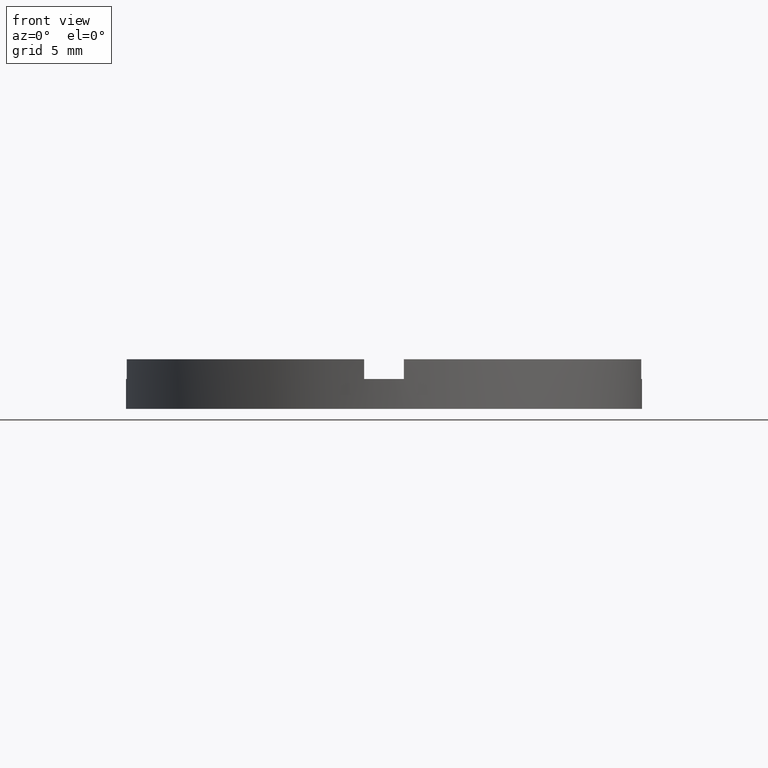
[diagram: clean part render]
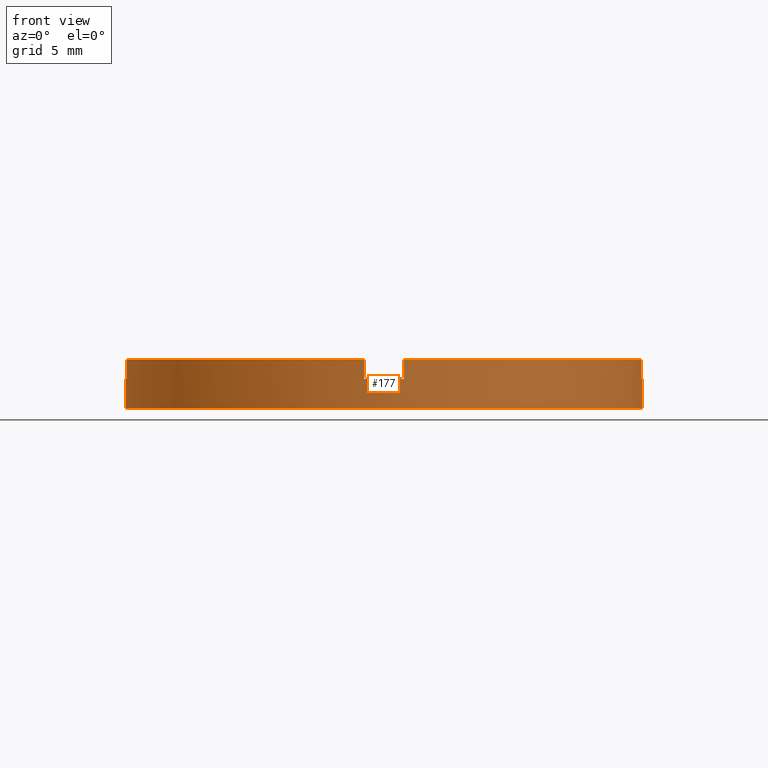
[diagram: same view with one face highlighted and labeled with its STEP entity id]
A machine part, front view. The second image highlights one B-rep face of the part: STEP entity #177.
In plain terms, the highlighted cylindrical surface (partial cylindrical patch) has radius 13 mm, axis along (-0, -0, -1).
Its self-contained STEP definition (entity closure, byte-faithful):
#6 = CIRCLE ( 'NONE', #585, 12.99999999999999822 ) ;
#9 = LINE ( 'NONE', #24, #232 ) ;
#19 = DIRECTION ( 'NONE',  ( -1.000000000000000000, 0.000000000000000000, 0.000000000000000000 ) ) ;
#20 = CARTESIAN_POINT ( 'NONE',  ( 0.000000000000000000, 0.000000000000000000, 2.500000000000000000 ) ) ;
#24 = CARTESIAN_POINT ( 'NONE',  ( 12.96148139681570655, -1.000000000000159872, 2.500000000000000000 ) ) ;
#33 = VECTOR ( 'NONE', #442, 1000.000000000000000 ) ;
#35 = LINE ( 'NONE', #359, #33 ) ;
#37 = CARTESIAN_POINT ( 'NONE',  ( -12.96148139681571543, -1.000000000000022427, 2.500000000000000000 ) ) ;
#39 = VECTOR ( 'NONE', #267, 1000.000000000000000 ) ;
#51 = EDGE_CURVE ( 'NONE', #616, #680, #471, .T. ) ;
#64 = DIRECTION ( 'NONE',  ( 1.000000000000000000, 0.000000000000000000, 0.000000000000000000 ) ) ;
#65 = CARTESIAN_POINT ( 'NONE',  ( 0.000000000000000000, 0.000000000000000000, 1.500000000000000000 ) ) ;
#68 = DIRECTION ( 'NONE',  ( 0.000000000000000000, 0.000000000000000000, 1.000000000000000000 ) ) ;
#97 = ORIENTED_EDGE ( 'NONE', *, *, #669, .T. ) ;
#104 = ORIENTED_EDGE ( 'NONE', *, *, #294, .F. ) ;
#115 = CARTESIAN_POINT ( 'NONE',  ( -12.96148139681571543, -1.000000000000022427, 1.500000000000000000 ) ) ;
#120 = AXIS2_PLACEMENT_3D ( 'NONE', #660, #739, #317 ) ;
#129 = EDGE_CURVE ( 'NONE', #406, #678, #215, .T. ) ;
#141 = VERTEX_POINT ( 'NONE', #279 ) ;
#147 = VERTEX_POINT ( 'NONE', #620 ) ;
#149 = CARTESIAN_POINT ( 'NONE',  ( 0.000000000000000000, 0.000000000000000000, 1.500000000000000000 ) ) ;
#159 = VERTEX_POINT ( 'NONE', #559 ) ;
#168 = ORIENTED_EDGE ( 'NONE', *, *, #332, .T. ) ;
#177 = ADVANCED_FACE ( 'NONE', ( #231 ), #754, .T. ) ;
#181 = VERTEX_POINT ( 'NONE', #189 ) ;
#189 = CARTESIAN_POINT ( 'NONE',  ( 12.96148139681570655, -1.000000000000159872, 2.500000000000000000 ) ) ;
#213 = CARTESIAN_POINT ( 'NONE',  ( 12.99999999999999822, 1.592040838891558898E-15, 2.500000000000000000 ) ) ;
#215 = LINE ( 'NONE', #572, #221 ) ;
#216 = DIRECTION ( 'NONE',  ( 0.000000000000000000, 0.000000000000000000, 1.000000000000000000 ) ) ;
#220 = DIRECTION ( 'NONE',  ( -0.000000000000000000, -0.000000000000000000, -1.000000000000000000 ) ) ;
#221 = VECTOR ( 'NONE', #510, 1000.000000000000000 ) ;
#231 = FACE_OUTER_BOUND ( 'NONE', #637, .T. ) ;
#232 = VECTOR ( 'NONE', #68, 1000.000000000000000 ) ;
#244 = AXIS2_PLACEMENT_3D ( 'NONE', #149, #216, #287 ) ;
#254 = DIRECTION ( 'NONE',  ( 0.000000000000000000, 0.000000000000000000, 1.000000000000000000 ) ) ;
#266 = LINE ( 'NONE', #454, #268 ) ;
#267 = DIRECTION ( 'NONE',  ( -0.000000000000000000, -0.000000000000000000, -1.000000000000000000 ) ) ;
#268 = VECTOR ( 'NONE', #696, 1000.000000000000000 ) ;
#279 = CARTESIAN_POINT ( 'NONE',  ( -1.000000000000163425, -12.96148139681570655, 1.500000000000000000 ) ) ;
#280 = CIRCLE ( 'NONE', #244, 12.99999999999999822 ) ;
#283 = CARTESIAN_POINT ( 'NONE',  ( -1.000000000000163425, -12.96148139681570655, 2.500000000000000000 ) ) ;
#285 = CIRCLE ( 'NONE', #120, 12.99999999999999822 ) ;
#287 = DIRECTION ( 'NONE',  ( 1.000000000000000000, 0.000000000000000000, 0.000000000000000000 ) ) ;
#294 = EDGE_CURVE ( 'NONE', #147, #445, #280, .T. ) ;
#302 = CIRCLE ( 'NONE', #422, 12.99999999999999822 ) ;
#313 = DIRECTION ( 'NONE',  ( 1.000000000000000000, 0.000000000000000000, 0.000000000000000000 ) ) ;
#317 = DIRECTION ( 'NONE',  ( 1.000000000000000000, 0.000000000000000000, 0.000000000000000000 ) ) ;
#323 = DIRECTION ( 'NONE',  ( 1.000000000000000000, 0.000000000000000000, 0.000000000000000000 ) ) ;
#329 = CARTESIAN_POINT ( 'NONE',  ( 0.9999999999998365752, -12.96148139681572964, 1.500000000000000000 ) ) ;
#332 = EDGE_CURVE ( 'NONE', #141, #396, #266, .T. ) ;
#337 = EDGE_CURVE ( 'NONE', #159, #678, #6, .T. ) ;
#338 = ORIENTED_EDGE ( 'NONE', *, *, #380, .T. ) ;
#339 = DIRECTION ( 'NONE',  ( 0.000000000000000000, 0.000000000000000000, 1.000000000000000000 ) ) ;
#350 = VERTEX_POINT ( 'NONE', #761 ) ;
#359 = CARTESIAN_POINT ( 'NONE',  ( -12.99999999999999822, 0.000000000000000000, 2.500000000000000000 ) ) ;
#365 = EDGE_CURVE ( 'NONE', #147, #181, #9, .T. ) ;
#380 = EDGE_CURVE ( 'NONE', #350, #606, #475, .T. ) ;
#383 = ORIENTED_EDGE ( 'NONE', *, *, #692, .F. ) ;
#394 = ORIENTED_EDGE ( 'NONE', *, *, #556, .F. ) ;
#396 = VERTEX_POINT ( 'NONE', #283 ) ;
#406 = VERTEX_POINT ( 'NONE', #37 ) ;
#422 = AXIS2_PLACEMENT_3D ( 'NONE', #20, #254, #560 ) ;
#442 = DIRECTION ( 'NONE',  ( -0.000000000000000000, -0.000000000000000000, -1.000000000000000000 ) ) ;
#445 = VERTEX_POINT ( 'NONE', #615 ) ;
#447 = ORIENTED_EDGE ( 'NONE', *, *, #365, .T. ) ;
#451 = ORIENTED_EDGE ( 'NONE', *, *, #337, .F. ) ;
#454 = CARTESIAN_POINT ( 'NONE',  ( -1.000000000000163425, -12.96148139681570655, 2.500000000000000000 ) ) ;
#455 = CARTESIAN_POINT ( 'NONE',  ( 0.000000000000000000, 0.000000000000000000, 2.500000000000000000 ) ) ;
#456 = CARTESIAN_POINT ( 'NONE',  ( 0.000000000000000000, 0.000000000000000000, 2.500000000000000000 ) ) ;
#467 = CARTESIAN_POINT ( 'NONE',  ( -12.99999999999999822, 0.000000000000000000, 0.000000000000000000 ) ) ;
#468 = CARTESIAN_POINT ( 'NONE',  ( 0.9999999999998365752, -12.96148139681572964, 2.500000000000000000 ) ) ;
#471 = CIRCLE ( 'NONE', #569, 12.99999999999999822 ) ;
#475 = LINE ( 'NONE', #468, #734 ) ;
#510 = DIRECTION ( 'NONE',  ( -0.000000000000000000, -0.000000000000000000, -1.000000000000000000 ) ) ;
#513 = DIRECTION ( 'NONE',  ( 0.000000000000000000, 0.000000000000000000, 1.000000000000000000 ) ) ;
#547 = AXIS2_PLACEMENT_3D ( 'NONE', #455, #667, #19 ) ;
#556 = EDGE_CURVE ( 'NONE', #445, #680, #577, .T. ) ;
#559 = CARTESIAN_POINT ( 'NONE',  ( -12.99999999999999822, 0.000000000000000000, 1.500000000000000000 ) ) ;
#560 = DIRECTION ( 'NONE',  ( 1.000000000000000000, 0.000000000000000000, 0.000000000000000000 ) ) ;
#569 = AXIS2_PLACEMENT_3D ( 'NONE', #593, #339, #313 ) ;
#571 = CIRCLE ( 'NONE', #643, 12.99999999999999822 ) ;
#572 = CARTESIAN_POINT ( 'NONE',  ( -12.96148139681571543, -1.000000000000022427, 2.500000000000000000 ) ) ;
#576 = EDGE_CURVE ( 'NONE', #406, #396, #571, .T. ) ;
#577 = LINE ( 'NONE', #213, #39 ) ;
#585 = AXIS2_PLACEMENT_3D ( 'NONE', #65, #513, #323 ) ;
#593 = CARTESIAN_POINT ( 'NONE',  ( 0.000000000000000000, 0.000000000000000000, 0.000000000000000000 ) ) ;
#598 = CARTESIAN_POINT ( 'NONE',  ( 12.99999999999999822, 1.592040838891558898E-15, 0.000000000000000000 ) ) ;
#602 = ORIENTED_EDGE ( 'NONE', *, *, #129, .T. ) ;
#606 = VERTEX_POINT ( 'NONE', #329 ) ;
#615 = CARTESIAN_POINT ( 'NONE',  ( 12.99999999999999822, 1.592040838891558898E-15, 1.500000000000000000 ) ) ;
#616 = VERTEX_POINT ( 'NONE', #467 ) ;
#618 = ORIENTED_EDGE ( 'NONE', *, *, #51, .T. ) ;
#620 = CARTESIAN_POINT ( 'NONE',  ( 12.96148139681570655, -1.000000000000159872, 1.500000000000000000 ) ) ;
#637 = EDGE_LOOP ( 'NONE', ( #394, #104, #447, #383, #338, #662, #168, #641, #602, #451, #97, #618 ) ) ;
#641 = ORIENTED_EDGE ( 'NONE', *, *, #576, .F. ) ;
#643 = AXIS2_PLACEMENT_3D ( 'NONE', #456, #743, #64 ) ;
#660 = CARTESIAN_POINT ( 'NONE',  ( 0.000000000000000000, 0.000000000000000000, 1.500000000000000000 ) ) ;
#662 = ORIENTED_EDGE ( 'NONE', *, *, #706, .F. ) ;
#667 = DIRECTION ( 'NONE',  ( -0.000000000000000000, -0.000000000000000000, -1.000000000000000000 ) ) ;
#669 = EDGE_CURVE ( 'NONE', #159, #616, #35, .T. ) ;
#678 = VERTEX_POINT ( 'NONE', #115 ) ;
#680 = VERTEX_POINT ( 'NONE', #598 ) ;
#692 = EDGE_CURVE ( 'NONE', #350, #181, #302, .T. ) ;
#696 = DIRECTION ( 'NONE',  ( 0.000000000000000000, 0.000000000000000000, 1.000000000000000000 ) ) ;
#706 = EDGE_CURVE ( 'NONE', #141, #606, #285, .T. ) ;
#734 = VECTOR ( 'NONE', #220, 1000.000000000000000 ) ;
#739 = DIRECTION ( 'NONE',  ( -0.000000000000000000, 0.000000000000000000, 1.000000000000000000 ) ) ;
#743 = DIRECTION ( 'NONE',  ( 0.000000000000000000, 0.000000000000000000, 1.000000000000000000 ) ) ;
#754 = CYLINDRICAL_SURFACE ( 'NONE', #547, 12.99999999999999822 ) ;
#761 = CARTESIAN_POINT ( 'NONE',  ( 0.9999999999998365752, -12.96148139681572964, 2.500000000000000000 ) ) ;